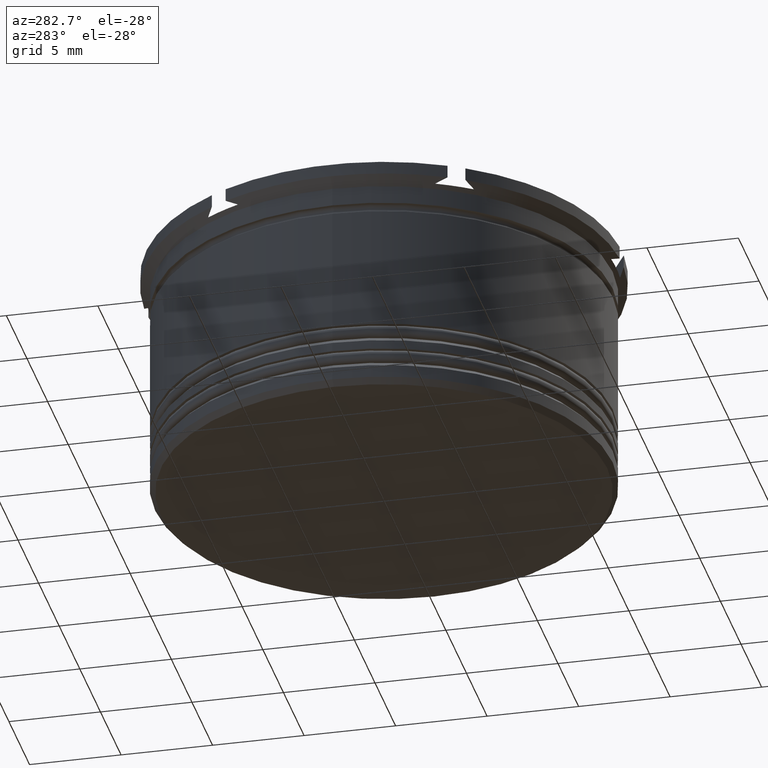
[diagram: clean part render]
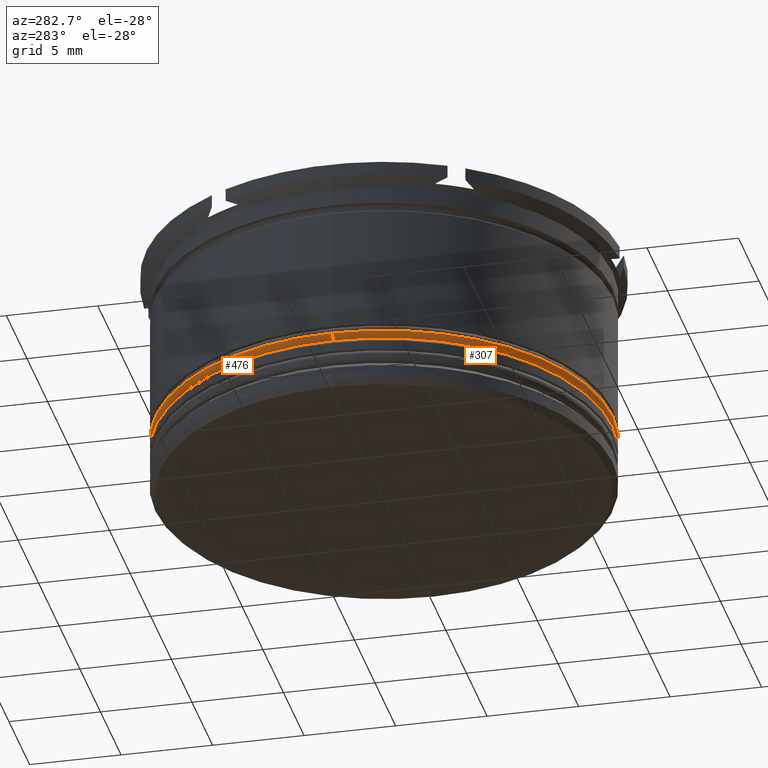
[diagram: same view with one multi-face feature highlighted, each face labeled with its STEP entity id]
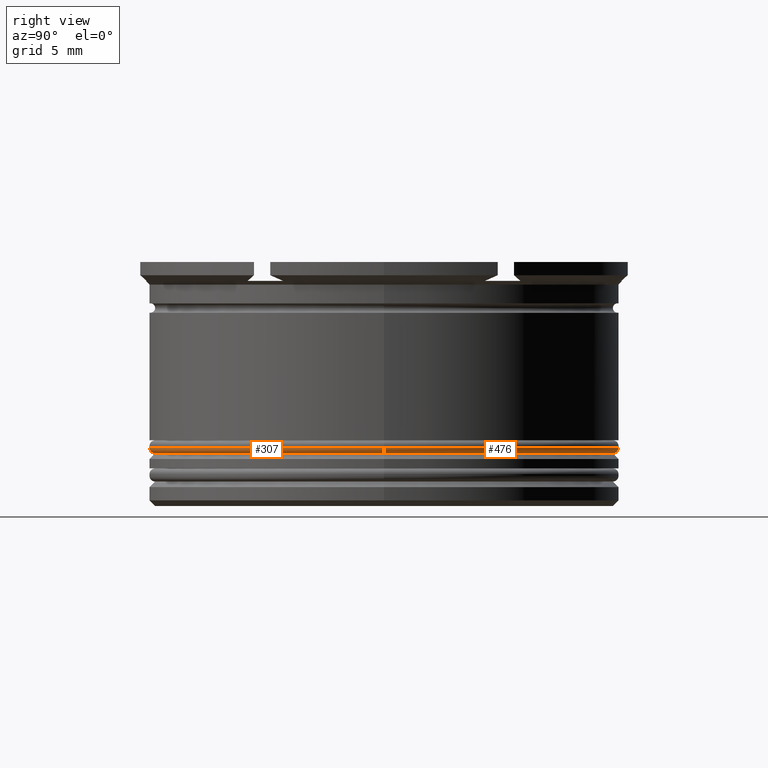
[diagram: same view with one multi-face feature highlighted, each face labeled with its STEP entity id]
A machine part, auxiliary view. The highlighted faces form ONE feature: a constant-radius fillet chain: 2 tangent blend faces with common blend radius 0.3 mm. The faces share edges in the B-rep.
A second angle (right view) of the same feature is appended — it is thin or edge-on in the first view.
Their STEP definitions:
[1] entity #476 (Torus):
#78 = VERTEX_POINT ( 'NONE', #458 ) ;
#249 = VERTEX_POINT ( 'NONE', #2128 ) ;
#268 = CARTESIAN_POINT ( 'NONE',  ( -12.50000000000000000, 1.530808498934191521E-15, -9.900000000000005684 ) ) ;
#380 = EDGE_LOOP ( 'NONE', ( #1141, #573, #1824, #848 ) ) ;
#441 = DIRECTION ( 'NONE',  ( -0.000000000000000000, -0.000000000000000000, -1.000000000000000000 ) ) ;
#447 = EDGE_CURVE ( 'NONE', #249, #78, #750, .T. ) ;
#458 = CARTESIAN_POINT ( 'NONE',  ( 12.20000000000000107, 0.000000000000000000, -10.20000000000000817 ) ) ;
#474 = DIRECTION ( 'NONE',  ( 0.000000000000000000, -1.000000000000000000, 0.000000000000000000 ) ) ;
#476 = ADVANCED_FACE ( 'NONE', ( #1193 ), #638, .T. ) ;
#573 = ORIENTED_EDGE ( 'NONE', *, *, #1045, .T. ) ;
#620 = DIRECTION ( 'NONE',  ( 1.000000000000000000, 0.000000000000000000, 0.000000000000000000 ) ) ;
#638 = TOROIDAL_SURFACE ( 'NONE', #1984, 12.20000000000000107, 0.2999999999999999889 ) ;
#642 = CIRCLE ( 'NONE', #945, 12.50000000000000000 ) ;
#750 = CIRCLE ( 'NONE', #1560, 12.20000000000000107 ) ;
#772 = DIRECTION ( 'NONE',  ( -1.000000000000000000, 1.224646799147353207E-16, 0.000000000000000000 ) ) ;
#840 = EDGE_CURVE ( 'NONE', #1015, #1226, #642, .T. ) ;
#848 = ORIENTED_EDGE ( 'NONE', *, *, #1514, .F. ) ;
#945 = AXIS2_PLACEMENT_3D ( 'NONE', #2093, #1719, #1023 ) ;
#995 = CARTESIAN_POINT ( 'NONE',  ( 12.50000000000000000, 0.000000000000000000, -9.900000000000005684 ) ) ;
#1015 = VERTEX_POINT ( 'NONE', #995 ) ;
#1023 = DIRECTION ( 'NONE',  ( 1.000000000000000000, 0.000000000000000000, 0.000000000000000000 ) ) ;
#1045 = EDGE_CURVE ( 'NONE', #249, #1226, #2023, .T. ) ;
#1071 = CIRCLE ( 'NONE', #1991, 0.2999999999999999334 ) ;
#1141 = ORIENTED_EDGE ( 'NONE', *, *, #447, .F. ) ;
#1193 = FACE_OUTER_BOUND ( 'NONE', #380, .T. ) ;
#1212 = DIRECTION ( 'NONE',  ( 0.000000000000000000, 0.000000000000000000, -1.000000000000000000 ) ) ;
#1226 = VERTEX_POINT ( 'NONE', #268 ) ;
#1514 = EDGE_CURVE ( 'NONE', #78, #1015, #1071, .T. ) ;
#1518 = CARTESIAN_POINT ( 'NONE',  ( 0.000000000000000000, 0.000000000000000000, -10.20000000000000817 ) ) ;
#1560 = AXIS2_PLACEMENT_3D ( 'NONE', #1518, #441, #1908 ) ;
#1596 = AXIS2_PLACEMENT_3D ( 'NONE', #1669, #1888, #772 ) ;
#1669 = CARTESIAN_POINT ( 'NONE',  ( -12.20000000000000107, 1.494069094959771056E-15, -9.900000000000005684 ) ) ;
#1719 = DIRECTION ( 'NONE',  ( 0.000000000000000000, 0.000000000000000000, 1.000000000000000000 ) ) ;
#1726 = DIRECTION ( 'NONE',  ( 0.000000000000000000, 0.000000000000000000, 1.000000000000000000 ) ) ;
#1740 = CARTESIAN_POINT ( 'NONE',  ( 0.000000000000000000, 0.000000000000000000, -9.900000000000005684 ) ) ;
#1824 = ORIENTED_EDGE ( 'NONE', *, *, #840, .F. ) ;
#1888 = DIRECTION ( 'NONE',  ( 1.224646799147353207E-16, 1.000000000000000000, -0.000000000000000000 ) ) ;
#1908 = DIRECTION ( 'NONE',  ( 1.000000000000000000, 0.000000000000000000, 0.000000000000000000 ) ) ;
#1984 = AXIS2_PLACEMENT_3D ( 'NONE', #1740, #1726, #620 ) ;
#1991 = AXIS2_PLACEMENT_3D ( 'NONE', #2124, #474, #1212 ) ;
#2023 = CIRCLE ( 'NONE', #1596, 0.2999999999999999334 ) ;
#2093 = CARTESIAN_POINT ( 'NONE',  ( 0.000000000000000000, 0.000000000000000000, -9.900000000000005684 ) ) ;
#2124 = CARTESIAN_POINT ( 'NONE',  ( 12.20000000000000107, 0.000000000000000000, -9.900000000000005684 ) ) ;
#2128 = CARTESIAN_POINT ( 'NONE',  ( -12.20000000000000107, 1.512438796946981289E-15, -10.20000000000000817 ) ) ;
[2] entity #307 (Torus):
#5 = EDGE_CURVE ( 'NONE', #1226, #1015, #247, .T. ) ;
#78 = VERTEX_POINT ( 'NONE', #458 ) ;
#196 = CARTESIAN_POINT ( 'NONE',  ( 0.000000000000000000, 0.000000000000000000, -9.900000000000005684 ) ) ;
#247 = CIRCLE ( 'NONE', #982, 12.50000000000000000 ) ;
#249 = VERTEX_POINT ( 'NONE', #2128 ) ;
#268 = CARTESIAN_POINT ( 'NONE',  ( -12.50000000000000000, 1.530808498934191521E-15, -9.900000000000005684 ) ) ;
#307 = ADVANCED_FACE ( 'NONE', ( #2230 ), #1909, .T. ) ;
#346 = DIRECTION ( 'NONE',  ( 0.000000000000000000, 0.000000000000000000, 1.000000000000000000 ) ) ;
#398 = ORIENTED_EDGE ( 'NONE', *, *, #1045, .F. ) ;
#458 = CARTESIAN_POINT ( 'NONE',  ( 12.20000000000000107, 0.000000000000000000, -10.20000000000000817 ) ) ;
#474 = DIRECTION ( 'NONE',  ( 0.000000000000000000, -1.000000000000000000, 0.000000000000000000 ) ) ;
#592 = DIRECTION ( 'NONE',  ( 1.000000000000000000, 0.000000000000000000, 0.000000000000000000 ) ) ;
#751 = ORIENTED_EDGE ( 'NONE', *, *, #5, .F. ) ;
#772 = DIRECTION ( 'NONE',  ( -1.000000000000000000, 1.224646799147353207E-16, 0.000000000000000000 ) ) ;
#865 = AXIS2_PLACEMENT_3D ( 'NONE', #1872, #2241, #592 ) ;
#982 = AXIS2_PLACEMENT_3D ( 'NONE', #1714, #983, #2088 ) ;
#983 = DIRECTION ( 'NONE',  ( 0.000000000000000000, 0.000000000000000000, 1.000000000000000000 ) ) ;
#995 = CARTESIAN_POINT ( 'NONE',  ( 12.50000000000000000, 0.000000000000000000, -9.900000000000005684 ) ) ;
#1015 = VERTEX_POINT ( 'NONE', #995 ) ;
#1045 = EDGE_CURVE ( 'NONE', #249, #1226, #2023, .T. ) ;
#1071 = CIRCLE ( 'NONE', #1991, 0.2999999999999999334 ) ;
#1103 = EDGE_CURVE ( 'NONE', #78, #249, #1914, .T. ) ;
#1127 = EDGE_LOOP ( 'NONE', ( #398, #1477, #2260, #751 ) ) ;
#1212 = DIRECTION ( 'NONE',  ( 0.000000000000000000, 0.000000000000000000, -1.000000000000000000 ) ) ;
#1226 = VERTEX_POINT ( 'NONE', #268 ) ;
#1291 = AXIS2_PLACEMENT_3D ( 'NONE', #196, #346, #2382 ) ;
#1477 = ORIENTED_EDGE ( 'NONE', *, *, #1103, .F. ) ;
#1514 = EDGE_CURVE ( 'NONE', #78, #1015, #1071, .T. ) ;
#1596 = AXIS2_PLACEMENT_3D ( 'NONE', #1669, #1888, #772 ) ;
#1669 = CARTESIAN_POINT ( 'NONE',  ( -12.20000000000000107, 1.494069094959771056E-15, -9.900000000000005684 ) ) ;
#1714 = CARTESIAN_POINT ( 'NONE',  ( 0.000000000000000000, 0.000000000000000000, -9.900000000000005684 ) ) ;
#1872 = CARTESIAN_POINT ( 'NONE',  ( 0.000000000000000000, 0.000000000000000000, -10.20000000000000817 ) ) ;
#1888 = DIRECTION ( 'NONE',  ( 1.224646799147353207E-16, 1.000000000000000000, -0.000000000000000000 ) ) ;
#1909 = TOROIDAL_SURFACE ( 'NONE', #1291, 12.20000000000000107, 0.2999999999999999889 ) ;
#1914 = CIRCLE ( 'NONE', #865, 12.20000000000000107 ) ;
#1991 = AXIS2_PLACEMENT_3D ( 'NONE', #2124, #474, #1212 ) ;
#2023 = CIRCLE ( 'NONE', #1596, 0.2999999999999999334 ) ;
#2088 = DIRECTION ( 'NONE',  ( 1.000000000000000000, 0.000000000000000000, 0.000000000000000000 ) ) ;
#2124 = CARTESIAN_POINT ( 'NONE',  ( 12.20000000000000107, 0.000000000000000000, -9.900000000000005684 ) ) ;
#2128 = CARTESIAN_POINT ( 'NONE',  ( -12.20000000000000107, 1.512438796946981289E-15, -10.20000000000000817 ) ) ;
#2230 = FACE_OUTER_BOUND ( 'NONE', #1127, .T. ) ;
#2241 = DIRECTION ( 'NONE',  ( -0.000000000000000000, -0.000000000000000000, -1.000000000000000000 ) ) ;
#2260 = ORIENTED_EDGE ( 'NONE', *, *, #1514, .T. ) ;
#2382 = DIRECTION ( 'NONE',  ( 1.000000000000000000, 0.000000000000000000, 0.000000000000000000 ) ) ;